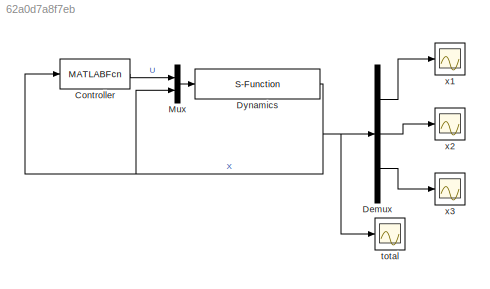
MODEL slx_62a0d7a8f7eb
KIND model
CONFIG AbsTol = auto
CONFIG FixedStep = auto
CONFIG MaxStep = auto
CONFIG MinStep = auto
CONFIG RelTol = 1e-3
CONFIG SampleTimeConstraint = Unconstrained
CONFIG Solver = VariableStepAuto
CONFIG SolverMode = Auto
CONFIG SolverName = VariableStepAuto
CONFIG StartTime = 0.0
CONFIG StopTime = 1000
BLOCK [MATLABFcn] Controller
  MATLABFcn = magnetic_levitation_controller(u)
  Ports = [1, 1]
BLOCK [Demux] Demux
  DisplayOption = bar
  Outputs = 3
  Ports = [1, 3]
BLOCK [S-Function] Dynamics
  EnableBusSupport = off
  FunctionName = magnetic_levitation_dynamics
  Ports = [1, 1]
  SFunctionDeploymentMode = off
BLOCK [Mux] Mux
  DisplayOption = bar
  Inputs = [1 3]
  Ports = [2, 1]
BLOCK [Scope] total
  Ports = [1]
  ScopeSpecificationString = Simulink.scopes.TimeScopeBlockCfg('CurrentConfiguration', extmgr.ConfigurationSet(extmgr.Configuration('Core','General UI',true),extmgr.Configuration('Core','Source UI',true),extmgr.Configuration('Sources','WiredSimulink',true,'DataLoggingVariableName','ScopeData3'),extmgr.Configuration('Visuals','Time Domain',true,'SerializedDisplays',{struct('MinYLimReal','-0.67377','MaxYLimReal','1.38916','YLab...<+1475ch>
BLOCK [Scope] x1
  Ports = [1]
  ScopeSpecificationString = Simulink.scopes.TimeScopeBlockCfg('CurrentConfiguration', extmgr.ConfigurationSet(extmgr.Configuration('Core','General UI',true),extmgr.Configuration('Core','Source UI',true),extmgr.Configuration('Sources','WiredSimulink',true),extmgr.Configuration('Visuals','Time Domain',true,'SerializedDisplays',{struct('MinYLimReal','0.74898','MaxYLimReal','3.25011','YLabelReal','','MinYLimMag','0.74898','MaxYL...<+1407ch>
BLOCK [Scope] x2
  Ports = [1]
  ScopeSpecificationString = Simulink.scopes.TimeScopeBlockCfg('CurrentConfiguration', extmgr.ConfigurationSet(extmgr.Configuration('Core','General UI',true),extmgr.Configuration('Core','Source UI',true),extmgr.Configuration('Sources','WiredSimulink',true,'DataLoggingVariableName','ScopeData1'),extmgr.Configuration('Visuals','Time Domain',true,'SerializedDisplays',{struct('MinYLimReal','-1.15493','MaxYLimReal','0.13068','YLab...<+1447ch>
BLOCK [Scope] x3
  Ports = [1]
  ScopeSpecificationString = Simulink.scopes.TimeScopeBlockCfg('CurrentConfiguration', extmgr.ConfigurationSet(extmgr.Configuration('Core','General UI',true),extmgr.Configuration('Core','Source UI',true),extmgr.Configuration('Sources','WiredSimulink',true,'DataLoggingVariableName','ScopeData2'),extmgr.Configuration('Visuals','Time Domain',true,'SerializedDisplays',{struct('MinYLimReal','0.66575','MaxYLimReal','2.14825','YLabe...<+1445ch>
LINE Controller:1 -> Mux:1
LINE Demux:1 -> x1:1
LINE Demux:2 -> x2:1
LINE Demux:3 -> x3:1
NET Dynamics:1 -> Controller:1, Demux:1, Mux:2, total:1
LINE Mux:1 -> Dynamics:1
note: NET lines group one-source signal fan-out (src -> all destinations, sorted); 1:1 wires keep LINE
